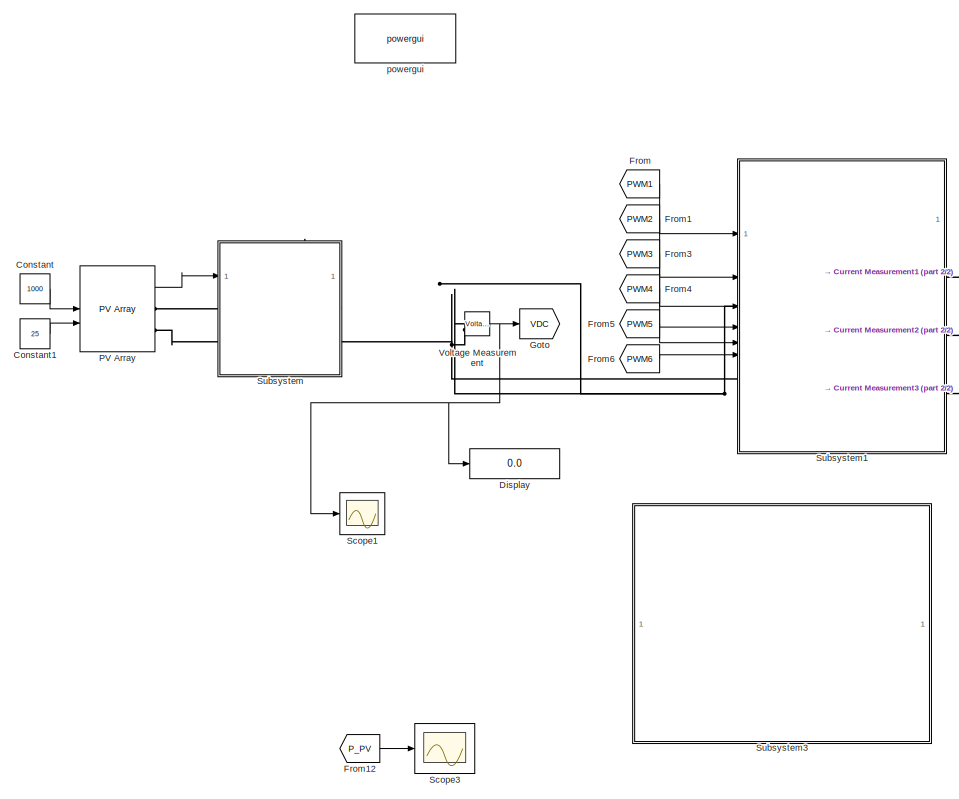
[diagram: root canvas - part 1/2, left side, full height]
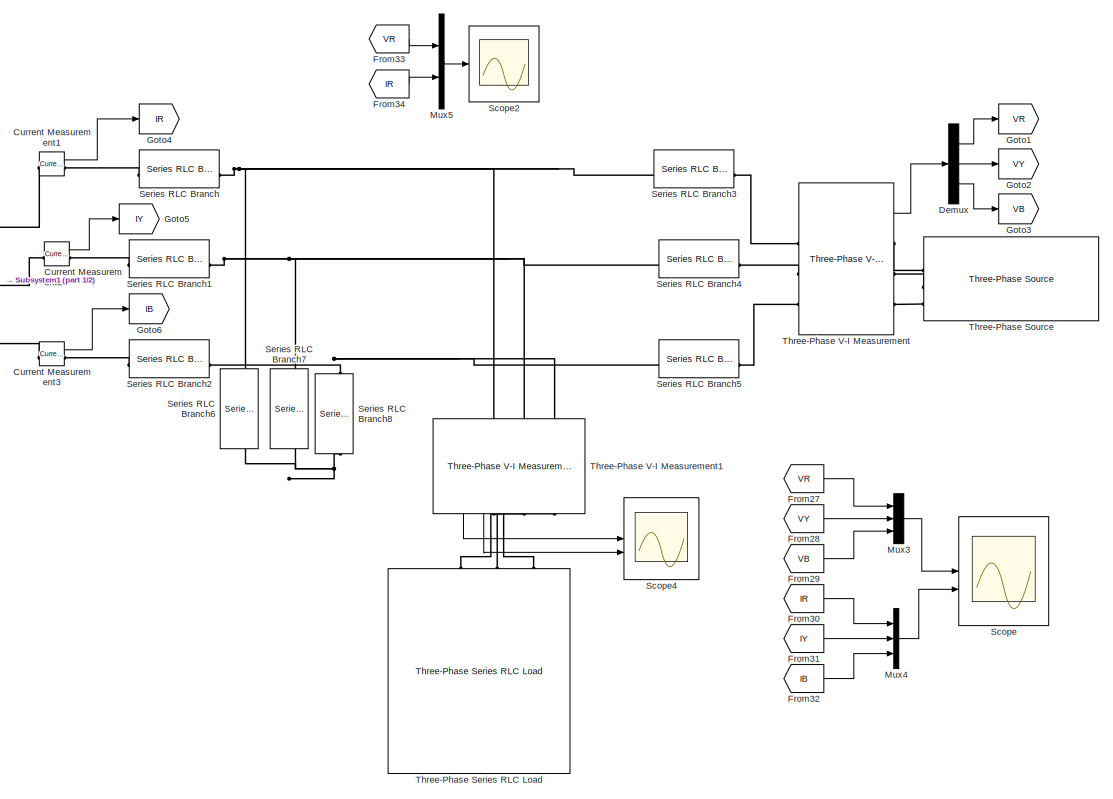
[diagram: root canvas - part 2/2, right side, full height]
MODEL slx_f2de49afbf4f
KIND model
CONFIG AbsTol = auto
CONFIG EnableMultiTasking = off
CONFIG FixedStep = auto
CONFIG MaxStep = auto
CONFIG MinStep = auto
CONFIG RelTol = 1e-3
CONFIG SampleTimeConstraint = Unconstrained
CONFIG SolverName = VariableStepAuto
CONFIG StartTime = 0.0
CONFIG StopTime = 2.0
BLOCK [Constant] Constant
  Value = 1000
BLOCK [Constant] Constant1
  Value = 25
BLOCK [Reference] Current Measurement1  REF=spsCurrentMeasurementLib/Current Measurement
  SourceBlock = spsCurrentMeasurementLib/Current Measurement
  SourceType = Current Measurement
  UserDataPersistent = on
BLOCK [Reference] Current Measurement2  REF=spsCurrentMeasurementLib/Current Measurement
  SourceBlock = spsCurrentMeasurementLib/Current Measurement
  SourceType = Current Measurement
  UserDataPersistent = on
BLOCK [Reference] Current Measurement3  REF=spsCurrentMeasurementLib/Current Measurement
  SourceBlock = spsCurrentMeasurementLib/Current Measurement
  SourceType = Current Measurement
  UserDataPersistent = on
BLOCK [Demux] Demux
  Outputs = 3
BLOCK [Display] Display
  Decimation = 1
BLOCK [From] From
  GotoTag = PWM1
  TagVisibility = global
BLOCK [From] From1
  GotoTag = PWM2
  TagVisibility = global
BLOCK [From] From12
  GotoTag = P_PV
  TagVisibility = global
BLOCK [From] From27
  GotoTag = VR
  TagVisibility = global
BLOCK [From] From28
  GotoTag = VY
  TagVisibility = global
BLOCK [From] From29
  GotoTag = VB
  TagVisibility = global
BLOCK [From] From3
  GotoTag = PWM3
  TagVisibility = global
BLOCK [From] From30
  GotoTag = IR
  TagVisibility = global
BLOCK [From] From31
  GotoTag = IY
  TagVisibility = global
BLOCK [From] From32
  GotoTag = IB
  TagVisibility = global
BLOCK [From] From33
  GotoTag = VR
  TagVisibility = global
BLOCK [From] From34
  GotoTag = IR
  TagVisibility = global
BLOCK [From] From4
  GotoTag = PWM4
  TagVisibility = global
BLOCK [From] From5
  GotoTag = PWM5
  TagVisibility = global
BLOCK [From] From6
  GotoTag = PWM6
  TagVisibility = global
BLOCK [Goto] Goto
  GotoTag = VDC
  TagVisibility = global
BLOCK [Goto] Goto1
  GotoTag = VR
  TagVisibility = global
BLOCK [Goto] Goto2
  GotoTag = VY
  TagVisibility = global
BLOCK [Goto] Goto3
  GotoTag = VB
  TagVisibility = global
BLOCK [Goto] Goto4
  GotoTag = IR
  TagVisibility = global
BLOCK [Goto] Goto5
  GotoTag = IY
  TagVisibility = global
BLOCK [Goto] Goto6
  GotoTag = IB
  TagVisibility = global
BLOCK [Mux] Mux3
  DisplayOption = bar
  Inputs = 3
BLOCK [Mux] Mux4
  DisplayOption = bar
  Inputs = 3
BLOCK [Mux] Mux5
  DisplayOption = bar
  Inputs = 2
BLOCK [Reference] PV Array  REF=spsPVArrayLib/PV Array
  LibrarySourceBlock = sps_lib/Sources/PV Array
  SourceBlock = spsPVArrayLib/PV Array
  SourceType = PV array
BLOCK [Scope] Scope
  Floating = off
  NumInputPorts = 2
  ScopeSpecificationString = Simulink.scopes.TimeScopeBlockCfg('CurrentConfiguration', extmgr.ConfigurationSet(extmgr.Configuration('Core','General UI',true,'FigureColor',[1 1 1]),extmgr.Configuration('Core','Source UI',true),extmgr.Configuration('Sources','WiredSimulink',true,'DataLogging',true,'DataLoggingLimitDataPoints',true,'DataLoggingMaxPoints','100000','DataLoggingSaveFormat','StructureWithTime','DataLoggingVariableNa...<+2838ch>
BLOCK [Scope] Scope1
  Floating = off
  NumInputPorts = 1
  ScopeSpecificationString = Simulink.scopes.TimeScopeBlockCfg('CurrentConfiguration', extmgr.ConfigurationSet(extmgr.Configuration('Core','General UI',true,'FigureColor',[1 1 1]),extmgr.Configuration('Core','Source UI',true),extmgr.Configuration('Sources','WiredSimulink',true,'DataLoggingVariableName','ScopeData1'),extmgr.Configuration('Visuals','Time Domain',true,'SerializedDisplays',{struct('MinYLimReal','-121.71216','MaxY...<+1781ch>
BLOCK [Scope] Scope2
  Floating = off
  NumInputPorts = 1
  ScopeSpecificationString = Simulink.scopes.TimeScopeBlockCfg('CurrentConfiguration', extmgr.ConfigurationSet(extmgr.Configuration('Core','General UI',true,'FigureColor',[1 1 1]),extmgr.Configuration('Core','Source UI',true),extmgr.Configuration('Sources','WiredSimulink',true,'DataLogging',true,'DataLoggingLimitDataPoints',true,'DataLoggingMaxPoints','100000','DataLoggingSaveFormat','StructureWithTime','DataLoggingVariableNa...<+1800ch>
BLOCK [Scope] Scope3
  Floating = off
  NumInputPorts = 1
  ScopeSpecificationString = Simulink.scopes.TimeScopeBlockCfg('CurrentConfiguration', extmgr.ConfigurationSet(extmgr.Configuration('Core','General UI',true,'FigureColor',[1 1 1]),extmgr.Configuration('Core','Source UI',true),extmgr.Configuration('Sources','WiredSimulink',true,'DataLoggingVariableName','ScopeData4'),extmgr.Configuration('Visuals','Time Domain',true,'SerializedDisplays',{struct('MinYLimReal','-17573.11528','Ma...<+1782ch>
BLOCK [Scope] Scope4
  Floating = off
  NumInputPorts = 2
  ScopeSpecificationString = Simulink.scopes.TimeScopeBlockCfg('CurrentConfiguration', extmgr.ConfigurationSet(extmgr.Configuration('Core','General UI',true,'FigureColor',[1 1 1]),extmgr.Configuration('Core','Source UI',true),extmgr.Configuration('Sources','WiredSimulink',true,'DataLoggingVariableName','ScopeData5'),extmgr.Configuration('Visuals','Time Domain',true,'SerializedDisplays',{struct('MinYLimReal','-1551.66164','Max...<+3048ch>
BLOCK [Reference] Series RLC Branch  REF=spsSeriesRLCBranchLib/Series RLC Branch
  LibrarySourceBlock = sps_lib/Passives/Series RLC Branch
  SourceBlock = spsSeriesRLCBranchLib/Series RLC Branch
  SourceType = Series RLC Branch
BLOCK [Reference] Series RLC Branch1  REF=spsSeriesRLCBranchLib/Series RLC Branch
  LibrarySourceBlock = sps_lib/Passives/Series RLC Branch
  SourceBlock = spsSeriesRLCBranchLib/Series RLC Branch
  SourceType = Series RLC Branch
BLOCK [Reference] Series RLC Branch2  REF=spsSeriesRLCBranchLib/Series RLC Branch
  LibrarySourceBlock = sps_lib/Passives/Series RLC Branch
  SourceBlock = spsSeriesRLCBranchLib/Series RLC Branch
  SourceType = Series RLC Branch
BLOCK [Reference] Series RLC Branch3  REF=spsSeriesRLCBranchLib/Series RLC Branch
  LibrarySourceBlock = sps_lib/Passives/Series RLC Branch
  SourceBlock = spsSeriesRLCBranchLib/Series RLC Branch
  SourceType = Series RLC Branch
BLOCK [Reference] Series RLC Branch4  REF=spsSeriesRLCBranchLib/Series RLC Branch
  LibrarySourceBlock = sps_lib/Passives/Series RLC Branch
  SourceBlock = spsSeriesRLCBranchLib/Series RLC Branch
  SourceType = Series RLC Branch
BLOCK [Reference] Series RLC Branch5  REF=spsSeriesRLCBranchLib/Series RLC Branch
  LibrarySourceBlock = sps_lib/Passives/Series RLC Branch
  SourceBlock = spsSeriesRLCBranchLib/Series RLC Branch
  SourceType = Series RLC Branch
BLOCK [Reference] Series RLC Branch6  REF=spsSeriesRLCBranchLib/Series RLC Branch
  LibrarySourceBlock = sps_lib/Passives/Series RLC Branch
  NameLocation = left
  SourceBlock = spsSeriesRLCBranchLib/Series RLC Branch
  SourceType = Series RLC Branch
BLOCK [Reference] Series RLC Branch7  REF=spsSeriesRLCBranchLib/Series RLC Branch
  LibrarySourceBlock = sps_lib/Passives/Series RLC Branch
  NameLocation = left
  SourceBlock = spsSeriesRLCBranchLib/Series RLC Branch
  SourceType = Series RLC Branch
BLOCK [Reference] Series RLC Branch8  REF=spsSeriesRLCBranchLib/Series RLC Branch
  LibrarySourceBlock = sps_lib/Passives/Series RLC Branch
  NameLocation = left
  SourceBlock = spsSeriesRLCBranchLib/Series RLC Branch
  SourceType = Series RLC Branch
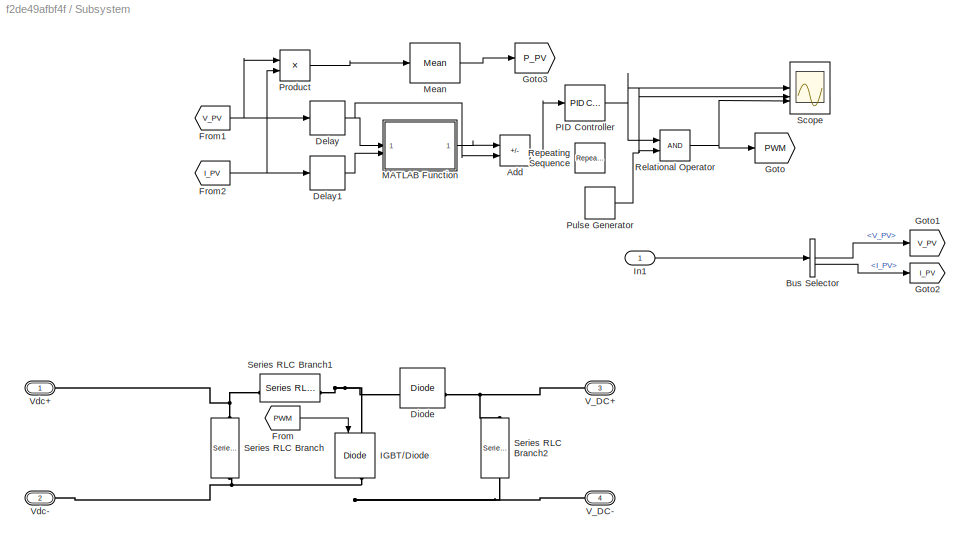
BLOCK [SubSystem] Subsystem
BLOCK [Sum] Subsystem/Add
  IconShape = rectangular
  Inputs = -+
BLOCK [BusSelector] Subsystem/Bus Selector
  OutputSignals = V_PV,I_PV
BLOCK [Delay] Subsystem/Delay
  DelayLength = 1
  InitialCondition = 0
  InputPortMap = u0
BLOCK [Delay] Subsystem/Delay1
  DelayLength = 1
  InitialCondition = 0
  InputPortMap = u0
BLOCK [Reference] Subsystem/Diode  REF=spsDiodeLib/Diode
  LibrarySourceBlock = sps_lib/Power Electronics/Diode
  SourceBlock = spsDiodeLib/Diode
  SourceType = Diode
BLOCK [From] Subsystem/From
  GotoTag = PWM
  TagVisibility = global
BLOCK [From] Subsystem/From1
  GotoTag = V_PV
  TagVisibility = global
BLOCK [From] Subsystem/From2
  GotoTag = I_PV
  TagVisibility = global
BLOCK [Goto] Subsystem/Goto
  GotoTag = PWM
  TagVisibility = global
BLOCK [Goto] Subsystem/Goto1
  GotoTag = V_PV
  TagVisibility = global
BLOCK [Goto] Subsystem/Goto2
  GotoTag = I_PV
  TagVisibility = global
BLOCK [Goto] Subsystem/Goto3
  GotoTag = P_PV
  TagVisibility = global
BLOCK [Reference] Subsystem/IGBT//Diode  REF=spsIGBTDiodeLib/IGBT//Diode
  LibrarySourceBlock = sps_lib/Power Electronics/IGBT//Diode
  NameLocation = left
  SourceBlock = spsIGBTDiodeLib/IGBT//Diode
  SourceType = IGBT/Diode
BLOCK [Inport] Subsystem/In1
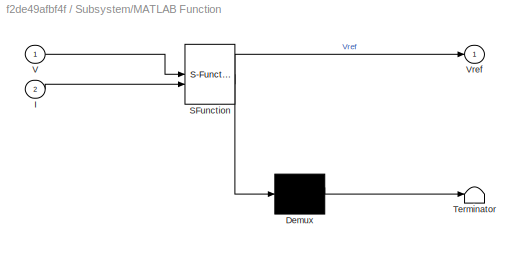
BLOCK [SubSystem] Subsystem/MATLAB Function
  ErrorFcn = Stateflow.Translate.translate
  PermitHierarchicalResolution = ExplicitOnly
  SFBlockType = MATLAB Function
  TreatAsAtomicUnit = on
BLOCK [Demux] Subsystem/MATLAB Function/ Demux 
  Outputs = 1
BLOCK [S-Function] Subsystem/MATLAB Function/ SFunction 
  EnableBusSupport = on
  FunctionName = sf_sfun
  PortCounts = [2 2]
  SFcnIsStateOwnerBlock = off
  SFunctionDeploymentMode = off
  Tag = Stateflow S-Function 2
BLOCK [Terminator] Subsystem/MATLAB Function/ Terminator 
BLOCK [Inport] Subsystem/MATLAB Function/I
  Port = 2
BLOCK [Inport] Subsystem/MATLAB Function/V
BLOCK [Outport] Subsystem/MATLAB Function/Vref
  VectorParamsAs1DForOutWhenUnconnected = off
BLOCK [Reference] Subsystem/Mean  REF=spsMeanLib/Mean
  LibrarySourceBlock = sps_lib/Sensors and Measurements/Mean
  SourceBlock = spsMeanLib/Mean
  SourceType = Mean
BLOCK [Reference] Subsystem/PID Controller  REF=slpidlib/PID Controller
  SourceBlock = slpidlib/PID Controller
  SourceType = PID 1dof
BLOCK [Product] Subsystem/Product
BLOCK [DiscretePulseGenerator] Subsystem/Pulse Generator
  Period = 1/500000
  PulseType = Time based
  PulseWidth = 90
BLOCK [RelationalOperator] Subsystem/Relational Operator
  InputSameDT = off
  OutDataTypeStr = boolean
  RndMeth = Simplest
BLOCK [Reference] Subsystem/Repeating Sequence  REF=simulink/Sources/Repeating
Sequence
  SourceBlock = simulink/Sources/Repeating\nSequence
  SourceType = Repeating table
BLOCK [Scope] Subsystem/Scope
  Floating = off
  NumInputPorts = 3
  ScopeSpecificationString = Simulink.scopes.TimeScopeBlockCfg('CurrentConfiguration', extmgr.ConfigurationSet(extmgr.Configuration('Core','General UI',true),extmgr.Configuration('Core','Source UI',true),extmgr.Configuration('Sources','WiredSimulink',true,'DataLoggingVariableName','ScopeData3'),extmgr.Configuration('Visuals','Time Domain',true,'SerializedDisplays',{struct('MinYLimReal','-0.11875','MaxYLimReal','1.06875','YLab...<+3081ch>
BLOCK [Reference] Subsystem/Series RLC Branch  REF=spsSeriesRLCBranchLib/Series RLC Branch
  LibrarySourceBlock = sps_lib/Passives/Series RLC Branch
  NameLocation = left
  SourceBlock = spsSeriesRLCBranchLib/Series RLC Branch
  SourceType = Series RLC Branch
BLOCK [Reference] Subsystem/Series RLC Branch1  REF=spsSeriesRLCBranchLib/Series RLC Branch
  LibrarySourceBlock = sps_lib/Passives/Series RLC Branch
  NameLocation = top
  SourceBlock = spsSeriesRLCBranchLib/Series RLC Branch
  SourceType = Series RLC Branch
BLOCK [Reference] Subsystem/Series RLC Branch2  REF=spsSeriesRLCBranchLib/Series RLC Branch
  LibrarySourceBlock = sps_lib/Passives/Series RLC Branch
  NameLocation = left
  SourceBlock = spsSeriesRLCBranchLib/Series RLC Branch
  SourceType = Series RLC Branch
BLOCK [PMIOPort] Subsystem/V_DC+
  NameLocation = top
  Port = 3
  Side = Right
BLOCK [PMIOPort] Subsystem/V_DC-
  NameLocation = top
  Port = 4
  Side = Right
BLOCK [PMIOPort] Subsystem/Vdc+
  Side = Left
BLOCK [PMIOPort] Subsystem/Vdc-
  Port = 2
  Side = Left
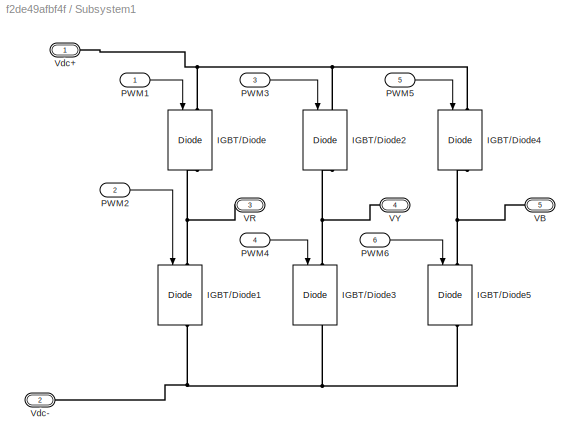
BLOCK [SubSystem] Subsystem1
BLOCK [Inport] Subsystem1/	PWM1 
BLOCK [Inport] Subsystem1/	PWM2
  Port = 2
BLOCK [Inport] Subsystem1/	PWM3
  Port = 3
BLOCK [Inport] Subsystem1/	PWM4
  Port = 4
BLOCK [Inport] Subsystem1/	PWM5
  Port = 5
BLOCK [Inport] Subsystem1/	PWM6
  Port = 6
BLOCK [Reference] Subsystem1/IGBT//Diode  REF=spsIGBTDiodeLib/IGBT//Diode
  LibrarySourceBlock = sps_lib/Power Electronics/IGBT//Diode
  NameLocation = right
  SourceBlock = spsIGBTDiodeLib/IGBT//Diode
  SourceType = IGBT/Diode
BLOCK [Reference] Subsystem1/IGBT//Diode1  REF=spsIGBTDiodeLib/IGBT//Diode
  LibrarySourceBlock = sps_lib/Power Electronics/IGBT//Diode
  NameLocation = right
  SourceBlock = spsIGBTDiodeLib/IGBT//Diode
  SourceType = IGBT/Diode
BLOCK [Reference] Subsystem1/IGBT//Diode2  REF=spsIGBTDiodeLib/IGBT//Diode
  LibrarySourceBlock = sps_lib/Power Electronics/IGBT//Diode
  NameLocation = right
  SourceBlock = spsIGBTDiodeLib/IGBT//Diode
  SourceType = IGBT/Diode
BLOCK [Reference] Subsystem1/IGBT//Diode3  REF=spsIGBTDiodeLib/IGBT//Diode
  LibrarySourceBlock = sps_lib/Power Electronics/IGBT//Diode
  NameLocation = right
  SourceBlock = spsIGBTDiodeLib/IGBT//Diode
  SourceType = IGBT/Diode
BLOCK [Reference] Subsystem1/IGBT//Diode4  REF=spsIGBTDiodeLib/IGBT//Diode
  LibrarySourceBlock = sps_lib/Power Electronics/IGBT//Diode
  NameLocation = right
  SourceBlock = spsIGBTDiodeLib/IGBT//Diode
  SourceType = IGBT/Diode
BLOCK [Reference] Subsystem1/IGBT//Diode5  REF=spsIGBTDiodeLib/IGBT//Diode
  LibrarySourceBlock = sps_lib/Power Electronics/IGBT//Diode
  NameLocation = right
  SourceBlock = spsIGBTDiodeLib/IGBT//Diode
  SourceType = IGBT/Diode
BLOCK [PMIOPort] Subsystem1/VB
  NameLocation = top
  Port = 5
  Side = Right
BLOCK [PMIOPort] Subsystem1/VR
  NameLocation = top
  Port = 3
  Side = Right
BLOCK [PMIOPort] Subsystem1/VY
  NameLocation = top
  Port = 4
  Side = Right
BLOCK [PMIOPort] Subsystem1/Vdc+
  Side = Left
BLOCK [PMIOPort] Subsystem1/Vdc-
  Port = 2
  Side = Left
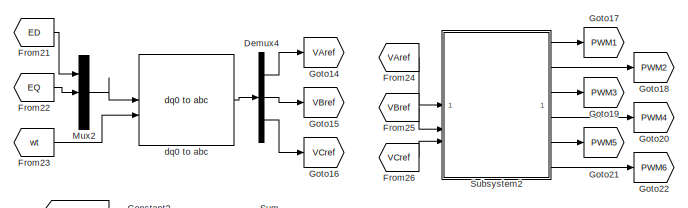
[diagram: Subsystem3 - part 1/2, top right region]
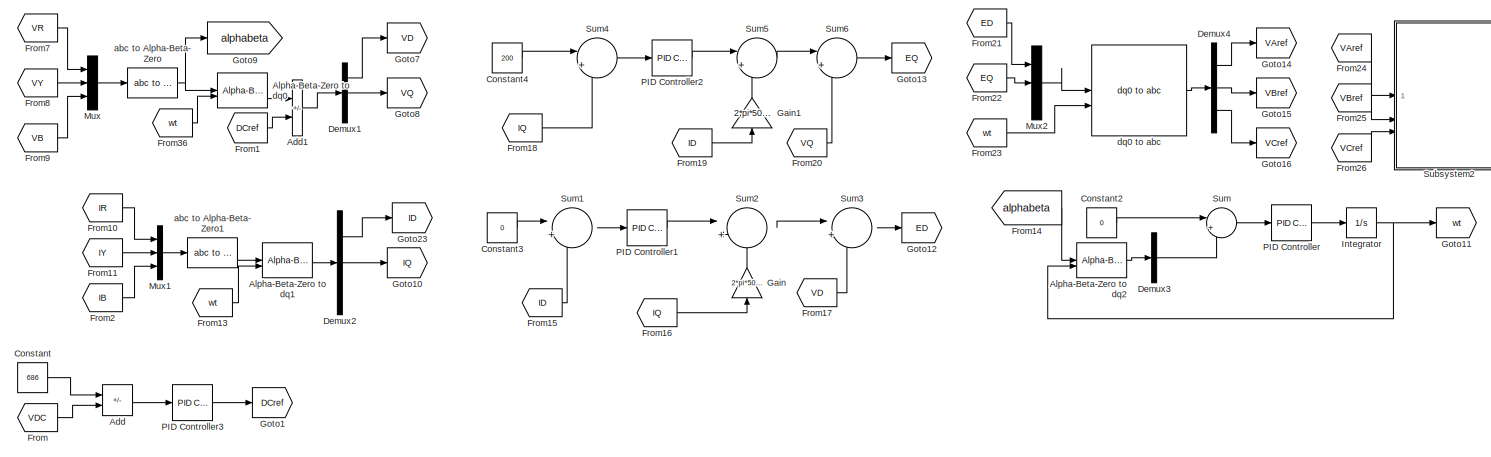
[diagram: Subsystem3 - part 2/2, most of the canvas]
BLOCK [SubSystem] Subsystem3
BLOCK [Sum] Subsystem3/Add
  IconShape = rectangular
  Inputs = +-
BLOCK [Sum] Subsystem3/Add1
  IconShape = rectangular
  Inputs = +-
BLOCK [Reference] Subsystem3/Alpha-Beta-Zero to dq0  REF=spsAlphaBetaZerotodq0Lib/Alpha-Beta-Zero
to dq0
  LibrarySourceBlock = sps_lib/Control/Alpha-Beta-Zero\nto dq0
  SourceBlock = spsAlphaBetaZerotodq0Lib/Alpha-Beta-Zero\nto dq0
  SourceType = Alpha-Beta-Zero to dq0 Transformation
BLOCK [Reference] Subsystem3/Alpha-Beta-Zero to dq1  REF=spsAlphaBetaZerotodq0Lib/Alpha-Beta-Zero
to dq0
  LibrarySourceBlock = sps_lib/Control/Alpha-Beta-Zero\nto dq0
  SourceBlock = spsAlphaBetaZerotodq0Lib/Alpha-Beta-Zero\nto dq0
  SourceType = Alpha-Beta-Zero to dq0 Transformation
BLOCK [Reference] Subsystem3/Alpha-Beta-Zero to dq2  REF=spsAlphaBetaZerotodq0Lib/Alpha-Beta-Zero
to dq0
  LibrarySourceBlock = sps_lib/Control/Alpha-Beta-Zero\nto dq0
  SourceBlock = spsAlphaBetaZerotodq0Lib/Alpha-Beta-Zero\nto dq0
  SourceType = Alpha-Beta-Zero to dq0 Transformation
BLOCK [Constant] Subsystem3/Constant
  Value = 686
BLOCK [Constant] Subsystem3/Constant2
  Value = 0
BLOCK [Constant] Subsystem3/Constant3
  Value = 0
BLOCK [Constant] Subsystem3/Constant4
  Value = 200
BLOCK [Demux] Subsystem3/Demux1
  Outputs = 3
BLOCK [Demux] Subsystem3/Demux2
  Outputs = 3
BLOCK [Demux] Subsystem3/Demux3
  Outputs = 3
BLOCK [Demux] Subsystem3/Demux4
  Outputs = 3
BLOCK [From] Subsystem3/From
  GotoTag = VDC
  TagVisibility = global
BLOCK [From] Subsystem3/From1
  GotoTag = DCref
  TagVisibility = global
BLOCK [From] Subsystem3/From10
  GotoTag = IR
  TagVisibility = global
BLOCK [From] Subsystem3/From11
  GotoTag = IY
  TagVisibility = global
BLOCK [From] Subsystem3/From13
  GotoTag = wt
  TagVisibility = global
BLOCK [From] Subsystem3/From14
  GotoTag = alphabeta
  TagVisibility = global
BLOCK [From] Subsystem3/From15
  GotoTag = ID
  TagVisibility = global
BLOCK [From] Subsystem3/From16
  GotoTag = IQ
  TagVisibility = global
BLOCK [From] Subsystem3/From17
  GotoTag = VD
  TagVisibility = global
BLOCK [From] Subsystem3/From18
  GotoTag = IQ
  TagVisibility = global
BLOCK [From] Subsystem3/From19
  GotoTag = ID
  TagVisibility = global
BLOCK [From] Subsystem3/From2
  GotoTag = IB
  TagVisibility = global
BLOCK [From] Subsystem3/From20
  GotoTag = VQ
  TagVisibility = global
BLOCK [From] Subsystem3/From21
  GotoTag = ED
  TagVisibility = global
BLOCK [From] Subsystem3/From22
  GotoTag = EQ
  TagVisibility = global
BLOCK [From] Subsystem3/From23
  GotoTag = wt
  TagVisibility = global
BLOCK [From] Subsystem3/From24
  GotoTag = VAref
  TagVisibility = global
BLOCK [From] Subsystem3/From25
  GotoTag = VBref
  TagVisibility = global
BLOCK [From] Subsystem3/From26
  GotoTag = VCref
  TagVisibility = global
BLOCK [From] Subsystem3/From36
  GotoTag = wt
  TagVisibility = global
BLOCK [From] Subsystem3/From7
  GotoTag = VR
  TagVisibility = global
BLOCK [From] Subsystem3/From8
  GotoTag = VY
  TagVisibility = global
BLOCK [From] Subsystem3/From9
  GotoTag = VB
  TagVisibility = global
BLOCK [Gain] Subsystem3/Gain
  Gain = 2*pi*50*1000e-6
  NameLocation = right
BLOCK [Gain] Subsystem3/Gain1
  Gain = 2*pi*50*1000e-6
  NameLocation = right
BLOCK [Goto] Subsystem3/Goto1
  GotoTag = DCref
  TagVisibility = global
BLOCK [Goto] Subsystem3/Goto10
  GotoTag = IQ
  TagVisibility = global
BLOCK [Goto] Subsystem3/Goto11
  GotoTag = wt
  TagVisibility = global
BLOCK [Goto] Subsystem3/Goto12
  GotoTag = ED
  TagVisibility = global
BLOCK [Goto] Subsystem3/Goto13
  GotoTag = EQ
  TagVisibility = global
BLOCK [Goto] Subsystem3/Goto14
  GotoTag = VAref
  TagVisibility = global
BLOCK [Goto] Subsystem3/Goto15
  GotoTag = VBref
  TagVisibility = global
BLOCK [Goto] Subsystem3/Goto16
  GotoTag = VCref
  TagVisibility = global
BLOCK [Goto] Subsystem3/Goto17
  GotoTag = PWM1
  TagVisibility = global
BLOCK [Goto] Subsystem3/Goto18
  GotoTag = PWM2
  TagVisibility = global
BLOCK [Goto] Subsystem3/Goto19
  GotoTag = PWM3
  TagVisibility = global
BLOCK [Goto] Subsystem3/Goto20
  GotoTag = PWM4
  TagVisibility = global
BLOCK [Goto] Subsystem3/Goto21
  GotoTag = PWM5
  TagVisibility = global
BLOCK [Goto] Subsystem3/Goto22
  GotoTag = PWM6
  TagVisibility = global
BLOCK [Goto] Subsystem3/Goto23
  GotoTag = ID
  TagVisibility = global
BLOCK [Goto] Subsystem3/Goto7
  GotoTag = VD
  TagVisibility = global
BLOCK [Goto] Subsystem3/Goto8
  GotoTag = VQ
  TagVisibility = global
BLOCK [Goto] Subsystem3/Goto9
  GotoTag = alphabeta
  TagVisibility = global
BLOCK [Integrator] Subsystem3/Integrator
BLOCK [Mux] Subsystem3/Mux
  DisplayOption = bar
  Inputs = 3
BLOCK [Mux] Subsystem3/Mux1
  DisplayOption = bar
  Inputs = 3
BLOCK [Mux] Subsystem3/Mux2
  DisplayOption = bar
  Inputs = 3
BLOCK [Reference] Subsystem3/PID Controller  REF=slpidlib/PID Controller
  SourceBlock = slpidlib/PID Controller
  SourceType = PID 1dof
BLOCK [Reference] Subsystem3/PID Controller1  REF=slpidlib/PID Controller
  SourceBlock = slpidlib/PID Controller
  SourceType = PID 1dof
BLOCK [Reference] Subsystem3/PID Controller2  REF=slpidlib/PID Controller
  SourceBlock = slpidlib/PID Controller
  SourceType = PID 1dof
BLOCK [Reference] Subsystem3/PID Controller3  REF=slpidlib/PID Controller
  LibrarySourceBlock = simulink/Continuous/PID Controller
  SourceBlock = slpidlib/PID Controller
  SourceType = PID 1dof
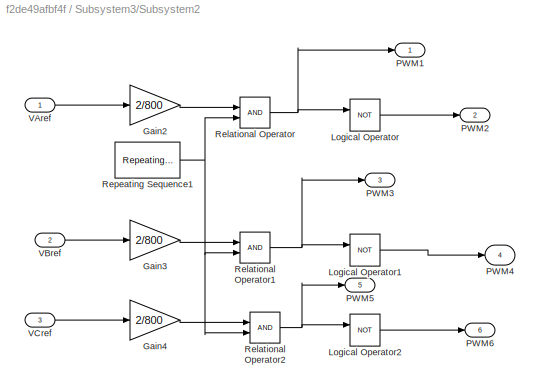
BLOCK [SubSystem] Subsystem3/Subsystem2
BLOCK [Gain] Subsystem3/Subsystem2/Gain2
  Gain = 2/800
BLOCK [Gain] Subsystem3/Subsystem2/Gain3
  Gain = 2/800
BLOCK [Gain] Subsystem3/Subsystem2/Gain4
  Gain = 2/800
BLOCK [Logic] Subsystem3/Subsystem2/Logical Operator
  AllPortsSameDT = off
  Operator = NOT
  OutDataTypeStr = boolean
BLOCK [Logic] Subsystem3/Subsystem2/Logical Operator1
  AllPortsSameDT = off
  Operator = NOT
  OutDataTypeStr = boolean
BLOCK [Logic] Subsystem3/Subsystem2/Logical Operator2
  AllPortsSameDT = off
  Operator = NOT
  OutDataTypeStr = boolean
BLOCK [Outport] Subsystem3/Subsystem2/PWM1
  VectorParamsAs1DForOutWhenUnconnected = off
BLOCK [Outport] Subsystem3/Subsystem2/PWM2
  Port = 2
  VectorParamsAs1DForOutWhenUnconnected = off
BLOCK [Outport] Subsystem3/Subsystem2/PWM3
  Port = 3
  VectorParamsAs1DForOutWhenUnconnected = off
BLOCK [Outport] Subsystem3/Subsystem2/PWM4
  Port = 4
  VectorParamsAs1DForOutWhenUnconnected = off
BLOCK [Outport] Subsystem3/Subsystem2/PWM5
  Port = 5
  VectorParamsAs1DForOutWhenUnconnected = off
BLOCK [Outport] Subsystem3/Subsystem2/PWM6
  Port = 6
  VectorParamsAs1DForOutWhenUnconnected = off
BLOCK [RelationalOperator] Subsystem3/Subsystem2/Relational Operator
  InputSameDT = off
  OutDataTypeStr = boolean
  RndMeth = Simplest
BLOCK [RelationalOperator] Subsystem3/Subsystem2/Relational Operator1
  InputSameDT = off
  OutDataTypeStr = boolean
  RndMeth = Simplest
BLOCK [RelationalOperator] Subsystem3/Subsystem2/Relational Operator2
  InputSameDT = off
  OutDataTypeStr = boolean
  RndMeth = Simplest
BLOCK [Reference] Subsystem3/Subsystem2/Repeating Sequence1  REF=simulink/Sources/Repeating
Sequence
  SourceBlock = simulink/Sources/Repeating\nSequence
  SourceType = Repeating table
BLOCK [Inport] Subsystem3/Subsystem2/VAref
BLOCK [Inport] Subsystem3/Subsystem2/VBref
  Port = 2
BLOCK [Inport] Subsystem3/Subsystem2/VCref
  Port = 3
BLOCK [Sum] Subsystem3/Sum
  Inputs = |+-
BLOCK [Sum] Subsystem3/Sum1
  Inputs = |+-
BLOCK [Sum] Subsystem3/Sum2
  Inputs = |++
BLOCK [Sum] Subsystem3/Sum3
  Inputs = |++
BLOCK [Sum] Subsystem3/Sum4
  Inputs = |+-
BLOCK [Sum] Subsystem3/Sum5
  Inputs = |+-
BLOCK [Sum] Subsystem3/Sum6
  Inputs = |++
BLOCK [Reference] Subsystem3/abc to Alpha-Beta-Zero  REF=spsabctoAlphaBetaZeroLib/abc to
Alpha-Beta-Zero
  LibrarySourceBlock = sps_lib/Control/abc to\nAlpha-Beta-Zero
  SourceBlock = spsabctoAlphaBetaZeroLib/abc to\nAlpha-Beta-Zero
  SourceType = abc to Alpha-Beta-Zero Transformation
BLOCK [Reference] Subsystem3/abc to Alpha-Beta-Zero1  REF=spsabctoAlphaBetaZeroLib/abc to
Alpha-Beta-Zero
  LibrarySourceBlock = sps_lib/Control/abc to\nAlpha-Beta-Zero
  SourceBlock = spsabctoAlphaBetaZeroLib/abc to\nAlpha-Beta-Zero
  SourceType = abc to Alpha-Beta-Zero Transformation
BLOCK [Reference] Subsystem3/dq0 to abc  REF=spsdq0toabcLib/dq0 to abc
  LibrarySourceBlock = sps_lib/Control/dq0 to abc
  SourceBlock = spsdq0toabcLib/dq0 to abc
  SourceType = dq0 to abc Transformation
BLOCK [Reference] Three-Phase Series RLC Load  REF=spsThreePhaseSeriesRLCLoadLib/Three-Phase
Series RLC Load
  AttributesFormatString = \n
  LibrarySourceBlock = sps_lib/Passives/Three-Phase\nSeries RLC Load
  SourceBlock = spsThreePhaseSeriesRLCLoadLib/Three-Phase\nSeries RLC Load
  SourceType = Three-Phase Series RLC Load
BLOCK [Reference] Three-Phase Source  REF=spsThreePhaseSourceLib/Three-Phase Source
  LibrarySourceBlock = sps_lib/Sources/Three-Phase Source
  NameLocation = top
  SourceBlock = spsThreePhaseSourceLib/Three-Phase Source
  SourceType = Three-Phase Source
BLOCK [Reference] Three-Phase V-I Measurement  REF=spsThreePhaseVIMeasurementLib/Three-Phase
V-I Measurement
  LibrarySourceBlock = sps_lib/Sensors and Measurements/Three-Phase\nV-I Measurement
  SourceBlock = spsThreePhaseVIMeasurementLib/Three-Phase\nV-I Measurement
  SourceType = Three-Phase VI Measurement
BLOCK [Reference] Three-Phase V-I Measurement1  REF=spsThreePhaseVIMeasurementLib/Three-Phase
V-I Measurement
  LibrarySourceBlock = sps_lib/Sensors and Measurements/Three-Phase\nV-I Measurement
  NameLocation = left
  SourceBlock = spsThreePhaseVIMeasurementLib/Three-Phase\nV-I Measurement
  SourceType = Three-Phase VI Measurement
BLOCK [Reference] Voltage Measurement  REF=spsVoltageMeasurementLib/Voltage Measurement
  LibrarySourceBlock = sps_lib/Sensors and Measurements/Voltage Measurement
  SourceBlock = spsVoltageMeasurementLib/Voltage Measurement
  SourceType = Voltage Measurement
  UserDataPersistent = on
BLOCK [Reference] powergui  REF=sps_lib/powergui
  LibrarySourceBlock = sps_lib/powergui
  Priority = 1
  SourceBlock = sps_lib/powergui
  SourceType = PSB option menu block
LINE Constant1:1 -> PV Array:2
LINE Constant:1 -> PV Array:1
LINE Current Measurement1:1 -> Goto4:1
LINE Current Measurement2:1 -> Goto5:1
LINE Current Measurement3:1 -> Goto6:1
LINE Demux:1 -> Goto1:1
LINE Demux:2 -> Goto2:1
LINE Demux:3 -> Goto3:1
LINE From12:1 -> Scope3:1
LINE From1:1 -> Subsystem1:2
LINE From27:1 -> Mux3:1
LINE From28:1 -> Mux3:2
LINE From29:1 -> Mux3:3
LINE From30:1 -> Mux4:1
LINE From31:1 -> Mux4:2
LINE From32:1 -> Mux4:3
LINE From33:1 -> Mux5:1
LINE From34:1 -> Mux5:2
LINE From3:1 -> Subsystem1:3
LINE From4:1 -> Subsystem1:4
LINE From5:1 -> Subsystem1:5
LINE From6:1 -> Subsystem1:6
LINE From:1 -> Subsystem1:1
LINE Mux3:1 -> Scope:1
LINE Mux4:1 -> Scope:2
LINE Mux5:1 -> Scope2:1
LINE PV Array:1 -> Subsystem:1
LINE Subsystem/Add:1 -> Subsystem/PID Controller:1
LINE Subsystem/Bus Selector:1 -> Subsystem/Goto1:1
LINE Subsystem/Bus Selector:2 -> Subsystem/Goto2:1
LINE Subsystem/Delay1:1 -> Subsystem/MATLAB Function:2
NET Subsystem/Delay:1 -> Subsystem/Add:2, Subsystem/MATLAB Function:1
NET Subsystem/From1:1 -> Subsystem/Delay:1, Subsystem/Product:1
NET Subsystem/From2:1 -> Subsystem/Delay1:1, Subsystem/Product:2
LINE Subsystem/From:1 -> Subsystem/IGBT//Diode:1
LINE Subsystem/In1:1 -> Subsystem/Bus Selector:1
LINE Subsystem/MATLAB Function:1 -> Subsystem/Add:1
LINE Subsystem/Mean:1 -> Subsystem/Goto3:1
NET Subsystem/PID Controller:1 -> Subsystem/Relational Operator:1, Subsystem/Scope:1
LINE Subsystem/Product:1 -> Subsystem/Mean:1
NET Subsystem/Pulse Generator:1 -> Subsystem/Relational Operator:2, Subsystem/Scope:2
NET Subsystem/Relational Operator:1 -> Subsystem/Goto:1, Subsystem/Scope:3
LINE Subsystem1/	PWM1 :1 -> Subsystem1/IGBT//Diode:1
LINE Subsystem1/	PWM2:1 -> Subsystem1/IGBT//Diode1:1
LINE Subsystem1/	PWM3:1 -> Subsystem1/IGBT//Diode2:1
LINE Subsystem1/	PWM4:1 -> Subsystem1/IGBT//Diode3:1
LINE Subsystem1/	PWM5:1 -> Subsystem1/IGBT//Diode4:1
LINE Subsystem1/	PWM6:1 -> Subsystem1/IGBT//Diode5:1
LINE Subsystem3/Add1:1 -> Subsystem3/Demux1:1
LINE Subsystem3/Add:1 -> Subsystem3/PID Controller3:1
LINE Subsystem3/Alpha-Beta-Zero to dq0:1 -> Subsystem3/Add1:1
LINE Subsystem3/Alpha-Beta-Zero to dq1:1 -> Subsystem3/Demux2:1
LINE Subsystem3/Alpha-Beta-Zero to dq2:1 -> Subsystem3/Demux3:1
LINE Subsystem3/Constant2:1 -> Subsystem3/Sum:1
LINE Subsystem3/Constant3:1 -> Subsystem3/Sum1:1
LINE Subsystem3/Constant4:1 -> Subsystem3/Sum4:1
LINE Subsystem3/Constant:1 -> Subsystem3/Add:1
LINE Subsystem3/Demux1:1 -> Subsystem3/Goto7:1
LINE Subsystem3/Demux1:2 -> Subsystem3/Goto8:1
LINE Subsystem3/Demux2:1 -> Subsystem3/Goto23:1
LINE Subsystem3/Demux2:2 -> Subsystem3/Goto10:1
LINE Subsystem3/Demux3:2 -> Subsystem3/Sum:2
LINE Subsystem3/Demux4:1 -> Subsystem3/Goto14:1
LINE Subsystem3/Demux4:2 -> Subsystem3/Goto15:1
LINE Subsystem3/Demux4:3 -> Subsystem3/Goto16:1
LINE Subsystem3/From10:1 -> Subsystem3/Mux1:1
LINE Subsystem3/From11:1 -> Subsystem3/Mux1:2
LINE Subsystem3/From13:1 -> Subsystem3/Alpha-Beta-Zero to dq1:2
LINE Subsystem3/From14:1 -> Subsystem3/Alpha-Beta-Zero to dq2:1
LINE Subsystem3/From15:1 -> Subsystem3/Sum1:2
LINE Subsystem3/From16:1 -> Subsystem3/Gain:1
LINE Subsystem3/From17:1 -> Subsystem3/Sum3:2
LINE Subsystem3/From18:1 -> Subsystem3/Sum4:2
LINE Subsystem3/From19:1 -> Subsystem3/Gain1:1
LINE Subsystem3/From1:1 -> Subsystem3/Add1:2
LINE Subsystem3/From20:1 -> Subsystem3/Sum6:2
LINE Subsystem3/From21:1 -> Subsystem3/Mux2:1
LINE Subsystem3/From22:1 -> Subsystem3/Mux2:2
LINE Subsystem3/From23:1 -> Subsystem3/dq0 to abc:2
LINE Subsystem3/From24:1 -> Subsystem3/Subsystem2:1
LINE Subsystem3/From25:1 -> Subsystem3/Subsystem2:2
LINE Subsystem3/From26:1 -> Subsystem3/Subsystem2:3
LINE Subsystem3/From2:1 -> Subsystem3/Mux1:3
LINE Subsystem3/From36:1 -> Subsystem3/Alpha-Beta-Zero to dq0:2
LINE Subsystem3/From7:1 -> Subsystem3/Mux:1
LINE Subsystem3/From8:1 -> Subsystem3/Mux:2
LINE Subsystem3/From9:1 -> Subsystem3/Mux:3
LINE Subsystem3/From:1 -> Subsystem3/Add:2
LINE Subsystem3/Gain1:1 -> Subsystem3/Sum5:2
LINE Subsystem3/Gain:1 -> Subsystem3/Sum2:2
NET Subsystem3/Integrator:1 -> Subsystem3/Alpha-Beta-Zero to dq2:2, Subsystem3/Goto11:1
LINE Subsystem3/Mux1:1 -> Subsystem3/abc to Alpha-Beta-Zero1:1
LINE Subsystem3/Mux2:1 -> Subsystem3/dq0 to abc:1
LINE Subsystem3/Mux:1 -> Subsystem3/abc to Alpha-Beta-Zero:1
LINE Subsystem3/PID Controller1:1 -> Subsystem3/Sum2:1
LINE Subsystem3/PID Controller2:1 -> Subsystem3/Sum5:1
LINE Subsystem3/PID Controller3:1 -> Subsystem3/Goto1:1
LINE Subsystem3/PID Controller:1 -> Subsystem3/Integrator:1
LINE Subsystem3/Subsystem2/Gain2:1 -> Subsystem3/Subsystem2/Relational Operator:1
LINE Subsystem3/Subsystem2/Gain3:1 -> Subsystem3/Subsystem2/Relational Operator1:1
LINE Subsystem3/Subsystem2/Gain4:1 -> Subsystem3/Subsystem2/Relational Operator2:1
LINE Subsystem3/Subsystem2/Logical Operator1:1 -> Subsystem3/Subsystem2/PWM4:1
LINE Subsystem3/Subsystem2/Logical Operator2:1 -> Subsystem3/Subsystem2/PWM6:1
LINE Subsystem3/Subsystem2/Logical Operator:1 -> Subsystem3/Subsystem2/PWM2:1
NET Subsystem3/Subsystem2/Relational Operator1:1 -> Subsystem3/Subsystem2/Logical Operator1:1, Subsystem3/Subsystem2/PWM3:1
NET Subsystem3/Subsystem2/Relational Operator2:1 -> Subsystem3/Subsystem2/Logical Operator2:1, Subsystem3/Subsystem2/PWM5:1
NET Subsystem3/Subsystem2/Relational Operator:1 -> Subsystem3/Subsystem2/Logical Operator:1, Subsystem3/Subsystem2/PWM1:1
NET Subsystem3/Subsystem2/Repeating Sequence1:1 -> Subsystem3/Subsystem2/Relational Operator1:2, Subsystem3/Subsystem2/Relational Operator2:2, Subsystem3/Subsystem2/Relational Operator:2
LINE Subsystem3/Subsystem2/VAref:1 -> Subsystem3/Subsystem2/Gain2:1
LINE Subsystem3/Subsystem2/VBref:1 -> Subsystem3/Subsystem2/Gain3:1
LINE Subsystem3/Subsystem2/VCref:1 -> Subsystem3/Subsystem2/Gain4:1
LINE Subsystem3/Subsystem2:1 -> Subsystem3/Goto17:1
LINE Subsystem3/Subsystem2:2 -> Subsystem3/Goto18:1
LINE Subsystem3/Subsystem2:3 -> Subsystem3/Goto19:1
LINE Subsystem3/Subsystem2:4 -> Subsystem3/Goto20:1
LINE Subsystem3/Subsystem2:5 -> Subsystem3/Goto21:1
LINE Subsystem3/Subsystem2:6 -> Subsystem3/Goto22:1
LINE Subsystem3/Sum1:1 -> Subsystem3/PID Controller1:1
LINE Subsystem3/Sum2:1 -> Subsystem3/Sum3:1
LINE Subsystem3/Sum3:1 -> Subsystem3/Goto12:1
LINE Subsystem3/Sum4:1 -> Subsystem3/PID Controller2:1
LINE Subsystem3/Sum5:1 -> Subsystem3/Sum6:1
LINE Subsystem3/Sum6:1 -> Subsystem3/Goto13:1
LINE Subsystem3/Sum:1 -> Subsystem3/PID Controller:1
LINE Subsystem3/abc to Alpha-Beta-Zero1:1 -> Subsystem3/Alpha-Beta-Zero to dq1:1
NET Subsystem3/abc to Alpha-Beta-Zero:1 -> Subsystem3/Alpha-Beta-Zero to dq0:1, Subsystem3/Goto9:1
LINE Subsystem3/dq0 to abc:1 -> Subsystem3/Demux4:1
LINE Three-Phase V-I Measurement1:1 -> Scope4:1
LINE Three-Phase V-I Measurement1:2 -> Scope4:2
LINE Three-Phase V-I Measurement:1 -> Demux:1
NET Voltage Measurement:1 -> Display:1, Goto:1, Scope1:1
PLINE Current Measurement1:LConn1 -- Subsystem1:RConn1
PLINE Current Measurement1:RConn1 -- Series RLC Branch:LConn1
PLINE Current Measurement2:LConn1 -- Subsystem1:RConn2
PLINE Current Measurement2:RConn1 -- Series RLC Branch1:LConn1
PLINE Current Measurement3:LConn1 -- Subsystem1:RConn3
PLINE Current Measurement3:RConn1 -- Series RLC Branch2:LConn1
PLINE PV Array:RConn1 -- Subsystem:LConn1
PLINE PV Array:RConn2 -- Subsystem:LConn2
PNET net1: Series RLC Branch1:RConn1 -- Series RLC Branch4:LConn1 -- Series RLC Branch7:LConn1 -- Three-Phase V-I Measurement1:LConn2
PNET net2: Series RLC Branch2:RConn1 -- Series RLC Branch5:LConn1 -- Series RLC Branch8:LConn1 -- Three-Phase V-I Measurement1:LConn3
PNET net3: Series RLC Branch3:LConn1 -- Series RLC Branch6:LConn1 -- Series RLC Branch:RConn1 -- Three-Phase V-I Measurement1:LConn1
PLINE Series RLC Branch3:RConn1 -- Three-Phase V-I Measurement:LConn1
PLINE Series RLC Branch4:RConn1 -- Three-Phase V-I Measurement:LConn2
PLINE Series RLC Branch5:RConn1 -- Three-Phase V-I Measurement:LConn3
PNET net4: Series RLC Branch6:RConn1 -- Series RLC Branch7:RConn1 -- Series RLC Branch8:RConn1
PNET net5: Subsystem/Diode:LConn1 -- Subsystem/IGBT//Diode:LConn1 -- Subsystem/Series RLC Branch1:LConn1
PNET net6: Subsystem/Diode:RConn1 -- Subsystem/Series RLC Branch2:LConn1 -- Subsystem/V_DC+:RConn1
PNET net7: Subsystem/IGBT//Diode:RConn1 -- Subsystem/Series RLC Branch2:RConn1 -- Subsystem/Series RLC Branch:RConn1 -- Subsystem/V_DC-:RConn1 -- Subsystem/Vdc-:RConn1
PNET net8: Subsystem/Series RLC Branch1:RConn1 -- Subsystem/Series RLC Branch:LConn1 -- Subsystem/Vdc+:RConn1
PNET net9: Subsystem1/IGBT//Diode1:LConn1 -- Subsystem1/IGBT//Diode:RConn1 -- Subsystem1/VR:RConn1
PNET net10: Subsystem1/IGBT//Diode1:RConn1 -- Subsystem1/IGBT//Diode3:RConn1 -- Subsystem1/IGBT//Diode5:RConn1 -- Subsystem1/Vdc-:RConn1
PNET net11: Subsystem1/IGBT//Diode2:LConn1 -- Subsystem1/IGBT//Diode4:LConn1 -- Subsystem1/IGBT//Diode:LConn1 -- Subsystem1/Vdc+:RConn1
PNET net12: Subsystem1/IGBT//Diode2:RConn1 -- Subsystem1/IGBT//Diode3:LConn1 -- Subsystem1/VY:RConn1
PNET net13: Subsystem1/IGBT//Diode4:RConn1 -- Subsystem1/IGBT//Diode5:LConn1 -- Subsystem1/VB:RConn1
PNET net14: Subsystem1:LConn1 -- Subsystem:RConn1 -- Voltage Measurement:LConn1
PNET net15: Subsystem1:LConn2 -- Subsystem:RConn2 -- Voltage Measurement:LConn2
PLINE Three-Phase Series RLC Load:LConn1 -- Three-Phase V-I Measurement1:RConn3
PLINE Three-Phase Series RLC Load:LConn2 -- Three-Phase V-I Measurement1:RConn2
PLINE Three-Phase Series RLC Load:LConn3 -- Three-Phase V-I Measurement1:RConn1
PLINE Three-Phase Source:RConn1 -- Three-Phase V-I Measurement:RConn1
PLINE Three-Phase Source:RConn2 -- Three-Phase V-I Measurement:RConn2
PLINE Three-Phase Source:RConn3 -- Three-Phase V-I Measurement:RConn3
note: NET lines group one-source signal fan-out (src -> all destinations, sorted); 1:1 wires keep LINE; PNET lines group multi-terminal physical nets as a canonical sorted terminal list (undirected conserving connections); 2-terminal nets keep the pairwise PLINE form
CHART Subsystem/MATLAB Function states=1 transitions=1
  STATE_LABEL 'eML_blk_kernel()'
  STATE_LABEL "SCRIPT:\nfunction Vref = RefGen(V,I)\n \nVrefmax=900;\nVrefmin=0;\nVrefinit=300;\ndeltaVref=1;\npersistent Vold Pold Vrefold;\n \ndataType = 'double';\n \nif isempty(Vold)\n    Vold=0;\n    Pold=0;\n    Vrefold=Vrefinit;\nend\n \nP=V*I;\ndV=V-Vold;\ndP=P-Pold;\n \nif dP~=0\n    if dP<0\n        if dV<0\n            Vref=Vrefold+deltaVref;\n        else\n            Vref=Vrefold-deltaVref;\n        end\n    else\n        if dV...<+226ch>"
CHART  states=0 transitions=0
